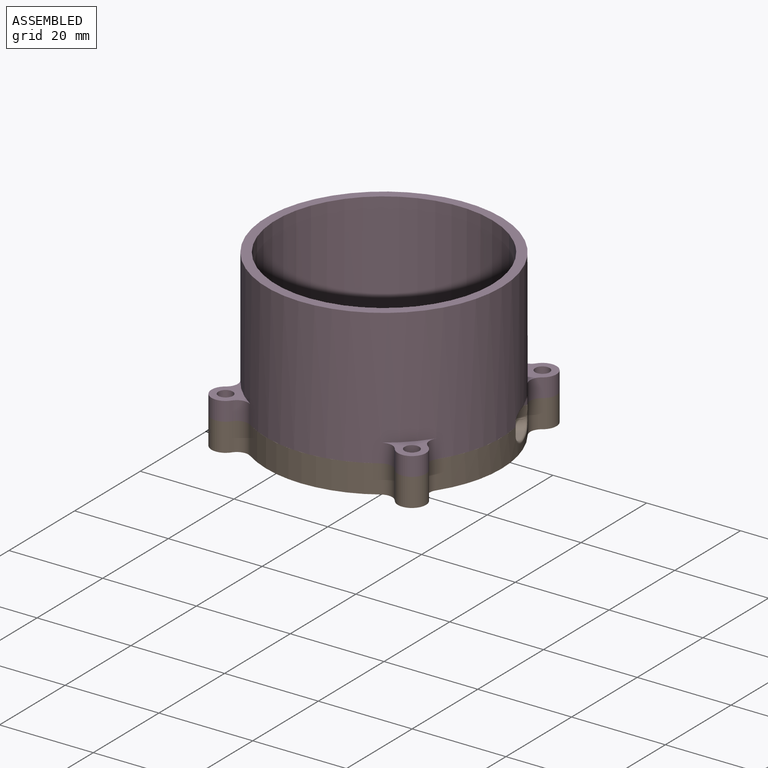
[diagram: assembled view]
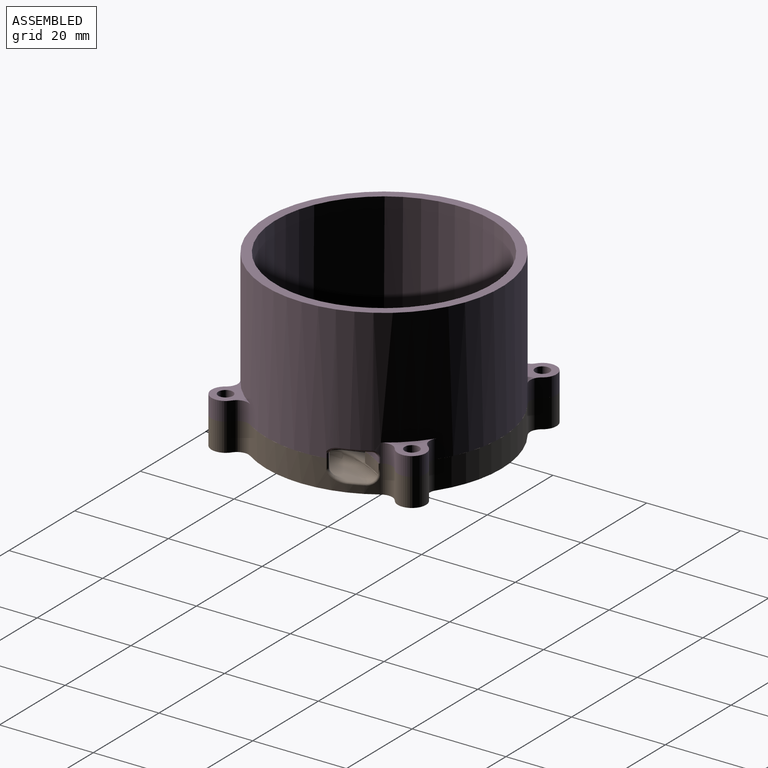
[diagram: assembled view, second angle]
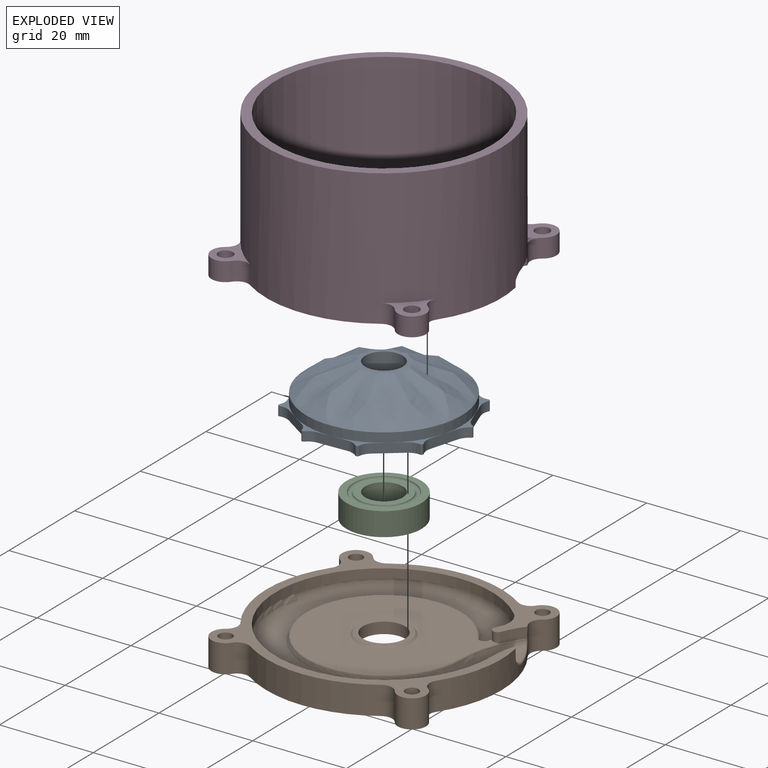
[diagram: exploded view]
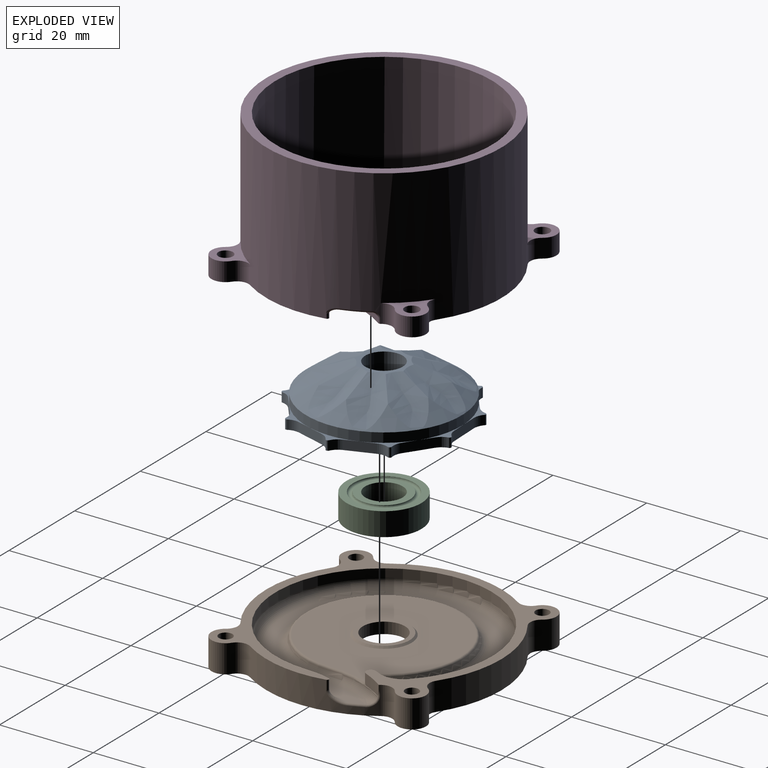
[diagram: exploded view, second angle]
ASSEMBLY  parts=4 mates=4
PART A: 78 faces, bbox 61.4x59.3x15.4 mm
  f0: cylinder r=4mm len=8mm, axis (0,0,-1), area 90.5mm2, adj f76,f77
  f1: bspline ~30.55x26.68mm, area 72mm2, adj f2,f10,f19,f72,f77
  f2: bspline ~39.54x32.55mm, area 72mm2, adj f1,f3,f18,f19,f77
  f3: bspline ~37.3x22.11mm, area 72mm2, adj f2,f4,f17,f18,f77
  f4: bspline ~34.81x33.17mm, area 72mm2, adj f3,f5,f16,f17,f77
  f5: bspline ~40.39x28.73mm, area 72mm2, adj f4,f6,f15,f16,f77
  f6: bspline ~30.55x26.68mm, area 72mm2, adj f5,f7,f14,f15,f77
  f7: bspline ~39.54x32.55mm, area 72mm2, adj f6,f8,f13,f14,f77
  f8: bspline ~37.3x22.11mm, area 72mm2, adj f7,f9,f12,f13,f77
  f9: bspline ~34.81x33.17mm, area 72mm2, adj f8,f10,f11,f12,f77
  f10: bspline ~40.39x28.73mm, area 72mm2, adj f1,f9,f11,f72,f77
  f11: cone r=16.61mm half-angle=52.1deg, axis (0,0,-1), area 26.4mm2, adj f9,f10,f71
  f12: cone r=16.61mm half-angle=52.1deg, axis (0,0,-1), area 26.4mm2, adj f8,f9,f71
  f13: cone r=16.61mm half-angle=52.1deg, axis (0,0,-1), area 26.4mm2, adj f7,f8,f71
  f14: cone r=16.61mm half-angle=52.1deg, axis (0,0,-1), area 26.4mm2, adj f6,f7,f71
  f15: cone r=16.61mm half-angle=52.1deg, axis (0,0,-1), area 26.4mm2, adj f5,f6,f71
  f16: cone r=16.61mm half-angle=52.1deg, axis (0,0,-1), area 26.4mm2, adj f4,f5,f71
  f17: cone r=16.61mm half-angle=52.1deg, axis (0,0,-1), area 26.4mm2, adj f3,f4,f71
  f18: cone r=16.61mm half-angle=52.1deg, axis (0,0,-1), area 26.4mm2, adj f2,f3,f71
  f19: cone r=16.61mm half-angle=52.1deg, axis (0,0,-1), area 26.4mm2, adj f1,f2,f71
  f20: plane 8.3x6.03mm, normal (0,0,1), area 4.7mm2, adj f54,f55,f56,f57,f69,f71
  f21: plane 9.76x4.18mm, normal (0,0,1), area 4.7mm2, adj f29,f30,f57,f58,f70,f71
  f22: plane 9.76x4.18mm, normal (0,0,1), area 4.7mm2, adj f30,f31,f32,f33,f61,f71
  f23: plane 8.3x6.03mm, normal (0,0,1), area 4.7mm2, adj f33,f34,f35,f36,f62,f71
  f24: plane 10.26x2.71mm, normal (0,0,1), area 4.7mm2, adj f36,f37,f38,f39,f63,f71
  f25: plane 8.3x6.03mm, normal (0,0,1), area 4.7mm2, adj f39,f40,f41,f42,f64,f71
  f26: plane 9.76x4.18mm, normal (0,0,1), area 4.7mm2, adj f42,f43,f44,f45,f65,f71
  f27: plane 9.76x4.18mm, normal (0,0,1), area 4.7mm2, adj f45,f46,f47,f48,f66,f71
  f28: plane 8.3x6.03mm, normal (0,0,1), area 4.7mm2, adj f48,f49,f50,f51,f67,f71
  f29: cylinder r=3.12mm len=2.19mm, axis (0,0,-1), area 4.8mm2, adj f21,f30,f60,f70
  f30: plane 6.25x2mm, normal (0,1,0), area 12.5mm2, adj f21,f22,f29,f31,f60
  f31: cylinder r=3.12mm len=2.19mm, axis (0,0,-1), area 4.8mm2, adj f22,f30,f60,f61
  f32: cylinder r=3.12mm len=2.01mm, axis (0,0,-1), area 4.8mm2, adj f22,f33,f60,f61
  f33: plane 5.06x3.67mm, normal (-0.59,0.81,0), area 12.5mm2, adj f22,f23,f32,f34,f60
  f34: cylinder r=3.12mm len=2.3mm, axis (0,0,-1), area 4.8mm2, adj f23,f33,f60,f62
  f35: cylinder r=3.12mm len=2.36mm, axis (0,0,-1), area 4.8mm2, adj f23,f36,f60,f62
  f36: plane 5.94x2mm, normal (-0.95,0.31,0), area 12.5mm2, adj f23,f24,f35,f37,f60
  f37: cylinder r=3.12mm len=2mm, axis (0,0,-1), area 4.8mm2, adj f24,f36,f60,f63
  f38: cylinder r=3.12mm len=2mm, axis (0,0,-1), area 4.8mm2, adj f24,f39,f60,f63
  f39: plane 5.94x2mm, normal (-0.95,-0.31,0), area 12.5mm2, adj f24,f25,f38,f40,f60
  f40: cylinder r=3.12mm len=2.36mm, axis (0,0,-1), area 4.8mm2, adj f25,f39,f60,f64
  f41: cylinder r=3.12mm len=2.3mm, axis (0,0,-1), area 4.8mm2, adj f25,f42,f60,f64
  f42: plane 5.06x3.67mm, normal (-0.59,-0.81,0), area 12.5mm2, adj f25,f26,f41,f43,f60
  f43: cylinder r=3.12mm len=2.01mm, axis (0,0,-1), area 4.8mm2, adj f26,f42,f60,f65
  f44: cylinder r=3.12mm len=2.19mm, axis (0,0,-1), area 4.8mm2, adj f26,f45,f60,f65
  f45: plane 6.25x2mm, normal (0,-1,0), area 12.5mm2, adj f26,f27,f44,f46,f60
  f46: cylinder r=3.12mm len=2.19mm, axis (0,0,-1), area 4.8mm2, adj f27,f45,f60,f66
  f47: cylinder r=3.12mm len=2.01mm, axis (0,0,-1), area 4.8mm2, adj f27,f48,f60,f66
  f48: plane 5.06x3.67mm, normal (0.59,-0.81,0), area 12.5mm2, adj f27,f28,f47,f49,f60
  f49: cylinder r=3.12mm len=2.3mm, axis (0,0,-1), area 4.8mm2, adj f28,f48,f60,f67
  f50: cylinder r=3.12mm len=2.36mm, axis (0,0,-1), area 4.8mm2, adj f28,f51,f60,f67
  f51: plane 5.94x2mm, normal (0.95,-0.31,0), area 12.5mm2, adj f28,f50,f52,f59,f60
  f52: cylinder r=3.12mm len=2mm, axis (0,0,-1), area 4.8mm2, adj f51,f59,f60,f68
  f53: cylinder r=3.12mm len=2mm, axis (0,0,-1), area 4.8mm2, adj f54,f59,f60,f68
  f54: plane 5.94x2mm, normal (0.95,0.31,0), area 12.5mm2, adj f20,f53,f55,f59,f60
  f55: cylinder r=3.12mm len=2.36mm, axis (0,0,-1), area 4.8mm2, adj f20,f54,f60,f69
  f56: cylinder r=3.12mm len=2.3mm, axis (0,0,-1), area 4.8mm2, adj f20,f57,f60,f69
  f57: plane 5.06x3.67mm, normal (0.59,0.81,0), area 12.5mm2, adj f20,f21,f56,f58,f60
  f58: cylinder r=3.12mm len=2.01mm, axis (0,0,-1), area 4.8mm2, adj f21,f57,f60,f70
  f59: plane 10.26x2.71mm, normal (0,0,1), area 4.7mm2, adj f51,f52,f53,f54,f68,f71
  f60: plane 37x35.23mm, normal (0,0,-1), area 685.9mm2, adj f29,f30,f31,f32,f33,f34,f35,f36
  f61: cylinder r=0.4mm len=2mm, axis (0,0,-1), area 1.7mm2, adj f22,f31,f32,f60
  f62: cylinder r=0.4mm len=2mm, axis (0,0,-1), area 1.7mm2, adj f23,f34,f35,f60
  f63: cylinder r=0.4mm len=2mm, axis (0,0,-1), area 1.7mm2, adj f24,f37,f38,f60
  f64: cylinder r=0.4mm len=2mm, axis (0,0,-1), area 1.7mm2, adj f25,f40,f41,f60
  f65: cylinder r=0.4mm len=2mm, axis (0,0,-1), area 1.7mm2, adj f26,f43,f44,f60
  f66: cylinder r=0.4mm len=2mm, axis (0,0,-1), area 1.7mm2, adj f27,f46,f47,f60
  f67: cylinder r=0.4mm len=2mm, axis (0,0,-1), area 1.7mm2, adj f28,f49,f50,f60
  f68: cylinder r=0.4mm len=2mm, axis (0,0,-1), area 1.7mm2, adj f52,f53,f59,f60
  f69: cylinder r=0.4mm len=2mm, axis (0,0,-1), area 1.7mm2, adj f20,f55,f56,f60
  f70: cylinder r=0.4mm len=2mm, axis (0,0,-1), area 1.7mm2, adj f21,f29,f58,f60
  f71: cylinder r=16.61mm len=33.21mm, axis (0,0,-1), area 208.7mm2, adj f11,f12,f13,f14,f15,f16,f17,f18
  f72: cone r=16.61mm half-angle=52.1deg, axis (0,0,-1), area 26.4mm2, adj f1,f10,f71
  f73: cylinder r=8mm len=16mm, axis (0,0,-1), area 246.3mm2, adj f74,f75
  f74: plane 16x16mm, normal (0,0,-1), area 122.5mm2, adj f73,f76
  f75: torus R=8.5mm, axis (0,0,1), area 40.4mm2, adj f60,f73
  f76: torus R=5mm, axis (0,0,-1), area 43.1mm2, adj f0,f74
  f77: plane 11.16x10.63mm, normal (0,0,1), area 28.1mm2, adj f0,f1,f2,f3,f4,f5,f6,f7
PART B: 52 faces, bbox 50.2x50.2x6 mm
  f0: cylinder r=4.5mm len=9mm, axis (0,0,1), area 67.9mm2, adj f47,f49
  f1: cylinder r=25.1mm len=27.86mm, axis (0,0,-1), area 177.2mm2, adj f7,f13,f16,f27
  f2: cylinder r=25.1mm len=27.86mm, axis (0,0,-1), area 177.2mm2, adj f7,f13,f20,f23
  f3: cylinder r=25.1mm len=27.86mm, axis (0,0,-1), area 138.4mm2, adj f7,f10,f13,f19,f28,f43,f44,f45
  f4: cylinder r=25.1mm len=27.86mm, axis (0,0,-1), area 177.2mm2, adj f7,f13,f15,f24
  f5: plane 34x32.4mm, normal (0,0,1), area 724.3mm2, adj f14,f38,f39,f40,f41,f48
  f6: cylinder r=23.1mm len=46.2mm, axis (0,0,1), area 253.3mm2, adj f9,f12,f13,f36
  f7: plane 50.2x50.2mm, normal (0,0,-1), area 1834.1mm2, adj f1,f2,f3,f4,f15,f16,f17,f18
  f8: plane 44.28x42.2mm, normal (0,0,1), area 298.5mm2, adj f31,f32,f34,f35,f36,f37,f45
  f9: cylinder r=16.65mm len=4.93mm, axis (0,0,-1), area 10mm2, adj f6,f13,f37,f43
  f10: cylinder r=23.1mm len=4.51mm, axis (0,0,-1), area 11.7mm2, adj f3,f13,f14,f38,f46
  f11: cylinder r=25.1mm len=2mm, axis (0,0,-1), area 2.1mm2, adj f12,f13,f14,f34
  f12: cylinder r=5mm len=5.75mm, axis (0,0,-1), area 12.5mm2, adj f6,f11,f13,f35
  f13: plane 50.2x50.2mm, normal (0,0,1), area 404.2mm2, adj f1,f2,f3,f4,f6,f9,f10,f11
  f14: cylinder r=1mm len=2.28mm, axis (0,0,-1), area 6.4mm2, adj f5,f10,f11,f13,f38,f42
  f15: cylinder r=2.5mm len=6mm, axis (0,0,-1), area 23.4mm2, adj f4,f7,f13,f17
  f16: cylinder r=2.5mm len=6mm, axis (0,0,-1), area 23.4mm2, adj f1,f7,f13,f17
  f17: cylinder r=3mm len=6mm, axis (0,0,-1), area 63.4mm2, adj f7,f13,f15,f16
  f18: cylinder r=1.44mm len=6mm, axis (0,0,-1), area 54.2mm2, adj f7,f13
  f19: cylinder r=2.5mm len=6mm, axis (0,0,-1), area 23.4mm2, adj f3,f7,f13,f21
  f20: cylinder r=2.5mm len=6mm, axis (0,0,-1), area 23.4mm2, adj f2,f7,f13,f21
  f21: cylinder r=3mm len=6mm, axis (0,0,-1), area 63.4mm2, adj f7,f13,f19,f20
  f22: cylinder r=1.44mm len=6mm, axis (0,0,-1), area 54.2mm2, adj f7,f13
  f23: cylinder r=2.5mm len=6mm, axis (0,0,-1), area 23.4mm2, adj f2,f7,f13,f25
  f24: cylinder r=2.5mm len=6mm, axis (0,0,-1), area 23.4mm2, adj f4,f7,f13,f25
  f25: cylinder r=3mm len=6mm, axis (0,0,-1), area 63.4mm2, adj f7,f13,f23,f24
  f26: cylinder r=1.44mm len=6mm, axis (0,0,-1), area 54.2mm2, adj f7,f13
  f27: cylinder r=2.5mm len=6mm, axis (0,0,-1), area 23.4mm2, adj f1,f7,f13,f29
  f28: cylinder r=2.5mm len=6mm, axis (0,0,-1), area 23.4mm2, adj f3,f7,f13,f29
  f29: cylinder r=3mm len=6mm, axis (0,0,-1), area 63.4mm2, adj f7,f13,f27,f28
  f30: cylinder r=1.44mm len=6mm, axis (0,0,-1), area 54.2mm2, adj f7,f13
  f31: torus R=21.1mm, axis (0,0,1), area 36.1mm2, adj f8,f32,f38,f46
  f32: torus R=18.65mm, axis (0,0,1), area 272.8mm2, adj f8,f31,f33,f39
  f33: bspline ~4.26x1.79mm, area 2.8mm2, adj f32,f34,f40
  f34: torus R=27.1mm, axis (0,0,1), area 4.9mm2, adj f8,f11,f33,f35,f41,f42
  f35: torus R=3mm, axis (0,0,1), area 16.7mm2, adj f8,f12,f34,f36
  f36: torus R=21.1mm, axis (0,0,1), area 385.4mm2, adj f6,f8,f35,f37
  f37: torus R=18.65mm, axis (0,0,1), area 21.3mm2, adj f8,f9,f36,f44
  f38: torus R=23.55mm, axis (0,0,1), area 6.8mm2, adj f5,f10,f14,f31,f39,f46
  f39: torus R=16.2mm, axis (0,0,-1), area 64.9mm2, adj f5,f32,f38,f40
  f40: bspline ~2.92x1.45mm, area 1.8mm2, adj f5,f33,f39,f41
  f41: torus R=24.65mm, axis (0,0,-1), area 0.3mm2, adj f5,f34,f40,f42
  f42: bspline ~0.96x0.46mm, area 0.2mm2, adj f14,f34,f41
  f43: cylinder r=0.4mm len=2mm, axis (0,0,1), area 2.1mm2, adj f3,f9,f13,f44
  f44: bspline ~4.57x2.68mm, area 3.8mm2, adj f3,f37,f43,f45
  f45: torus R=24.7mm, axis (0,0,1), area 1.9mm2, adj f3,f8,f44,f46
  f46: bspline ~3.68x3.05mm, area 2.2mm2, adj f3,f10,f31,f38,f45
  f47: plane 11x11mm, normal (0,0,1), area 31.4mm2, adj f0,f48
  f48: cone r=5.5mm half-angle=45deg, axis (0,0,-1), area 20.3mm2, adj f5,f47
  f49: plane 16x16mm, normal (0,0,-1), area 137.4mm2, adj f0,f50
  f50: cylinder r=8mm len=16mm, axis (0,0,-1), area 50.3mm2, adj f49,f51
  f51: torus R=9mm, axis (0,0,1), area 82.5mm2, adj f7,f50
PART C: 8 faces, bbox 16x16x5.7 mm
  f0: plane 16x16mm, normal (0,0,1), area 68.3mm2, adj f2,f4
  f1: plane 16x16mm, normal (0,0,-1), area 68.3mm2, adj f2,f3
  f2: cylinder r=8mm len=16mm, axis (0,0,-1), area 251.3mm2, adj f0,f1
  f3: torus R=6mm, axis (0,0,-1), area 59.2mm2, adj f1,f7
  f4: torus R=6mm, axis (0,0,-1), area 59.2mm2, adj f0,f5
  f5: plane 11x11mm, normal (0,0,1), area 44.8mm2, adj f4,f6
  f6: cylinder r=4mm len=8mm, axis (0,0,-1), area 125.7mm2, adj f5,f7
  f7: plane 11x11mm, normal (0,0,-1), area 44.8mm2, adj f3,f6
PART D: 43 faces, bbox 50.6x50.6x29.4 mm
  f0: plane 8.94x8.94mm, normal (0,0,1), area 26.2mm2, adj f7,f19,f20,f21,f22
  f1: plane 8.94x8.94mm, normal (0,0,1), area 26.2mm2, adj f7,f15,f16,f17,f18
  f2: plane 8.94x8.94mm, normal (0,0,1), area 26.2mm2, adj f7,f23,f24,f25,f26
  f3: cylinder r=23.1mm len=46.2mm, axis (0,0,-1), area 3664.1mm2, adj f8,f9,f11,f13,f34,f40,f41
  f4: cylinder r=25.1mm len=8.14mm, axis (0,0,-1), area 30.7mm2, adj f5,f9,f11,f42
  f5: cylinder r=16.61mm len=4.5mm, axis (0,0,-1), area 11.2mm2, adj f4,f9,f10,f42
  f6: cylinder r=23.1mm len=9.54mm, axis (0,0,-1), area 10.4mm2, adj f9,f10,f31,f39
  f7: cylinder r=25.1mm len=50.2mm, axis (0,0,-1), area 4393.3mm2, adj f0,f1,f2,f9,f14,f15,f17,f21
  f8: cylinder r=16.61mm len=4.92mm, axis (0,0,-1), area 5mm2, adj f3,f9,f33,f35
  f9: plane 50.2x50.2mm, normal (0,0,-1), area 408.8mm2, adj f3,f4,f5,f6,f7,f8,f10,f11
  f10: cylinder r=0.4mm len=4.63mm, axis (0,0,-1), area 2.3mm2, adj f5,f6,f9,f13,f32,f42
  f11: cylinder r=5mm len=11mm, axis (0,0,-1), area 59.8mm2, adj f3,f4,f9,f42
  f12: plane 12.05x6.13mm, normal (0,0,-1), area 40mm2, adj f13,f31,f32,f33,f37
  f13: plane 10.44x7.2mm, normal (-0.5,-0.87,0), area 45.3mm2, adj f3,f10,f12,f32,f33,f34,f42
  f14: plane 8.94x8.94mm, normal (0,0,1), area 26.2mm2, adj f7,f27,f28,f29,f30
  f15: cylinder r=2.5mm len=4mm, axis (0,0,1), area 15.6mm2, adj f1,f7,f9,f16
  f16: cylinder r=3mm len=5.48mm, axis (0,0,1), area 42.2mm2, adj f1,f9,f15,f17
  f17: cylinder r=2.5mm len=4mm, axis (0,0,1), area 15.6mm2, adj f1,f7,f9,f16
  f18: cylinder r=1.55mm len=4mm, axis (0,0,1), area 39mm2, adj f1,f9
  f19: cylinder r=3mm len=5.48mm, axis (0,0,1), area 42.2mm2, adj f0,f9,f21,f22
  f20: cylinder r=1.55mm len=4mm, axis (0,0,1), area 39mm2, adj f0,f9
  f21: cylinder r=2.5mm len=4mm, axis (0,0,1), area 15.6mm2, adj f0,f7,f9,f19
  f22: cylinder r=2.5mm len=4mm, axis (0,0,1), area 15.6mm2, adj f0,f7,f9,f19
  f23: cylinder r=3mm len=5.48mm, axis (0,0,1), area 42.2mm2, adj f2,f9,f25,f26
  f24: cylinder r=1.55mm len=4mm, axis (0,0,1), area 39mm2, adj f2,f9
  f25: cylinder r=2.5mm len=4mm, axis (0,0,1), area 15.6mm2, adj f2,f7,f9,f23
  f26: cylinder r=2.5mm len=4mm, axis (0,0,1), area 15.6mm2, adj f2,f7,f9,f23
  f27: cylinder r=3mm len=5.48mm, axis (0,0,1), area 42.2mm2, adj f9,f14,f29,f30
  f28: cylinder r=1.55mm len=4mm, axis (0,0,1), area 39mm2, adj f9,f14
  f29: cylinder r=2.5mm len=4mm, axis (0,0,1), area 15.6mm2, adj f7,f9,f14,f27
  f30: cylinder r=2.5mm len=4mm, axis (0,0,1), area 15.6mm2, adj f7,f9,f14,f27
  f31: torus R=22.1mm, axis (0,0,1), area 15.6mm2, adj f6,f12,f32,f38
  f32: torus R=1.4mm, axis (0,0,1), area 1.4mm2, adj f10,f12,f13,f31
  f33: torus R=17.61mm, axis (0,0,1), area 9.5mm2, adj f8,f12,f13,f34,f36
  f34: torus R=22.1mm, axis (0,0,1), area 0.1mm2, adj f3,f13,f33
  f35: cylinder r=0.4mm len=1mm, axis (0,0,-1), area 1.1mm2, adj f7,f8,f9,f36
  f36: bspline ~3.04x1.72mm, area 2.2mm2, adj f7,f33,f35,f37
  f37: torus R=24.7mm, axis (0,0,1), area 3.6mm2, adj f7,f12,f36,f38
  f38: bspline ~1.8x1.7mm, area 1mm2, adj f7,f31,f37,f39
  f39: cylinder r=0.4mm len=1mm, axis (0,0,1), area 0.5mm2, adj f6,f7,f9,f38
  f40: extruded ~18x16.88mm, area 338.6mm2, adj f3,f41,f42
  f41: plane 50.2x50.2mm, normal (0,0,1), area 302.9mm2, adj f3,f7,f40
  f42: bspline ~17.36x12.12mm, area 87.5mm2, adj f4,f5,f10,f11,f13,f40
PLACE A rot(axis=(0,0,1),146.2deg) t=(0,0,1.8)mm
PLACE B t=(0,0,-2.2)mm fixed
PLACE C t=(0,0,2.2)mm
PLACE D t=(0,0,3.8)mm
MATE cylindrical A.f73 <-> B.f0  axis (0,0,-1) through (0,0,4.75)mm
MATE planar A.f73 <-> C.f2  axis (0,0,-1) through (0,0,7.2)mm
MATE planar D.f9 <-> B.f13  axis (0,0,-1) through (-0.18,0.07,3.8)mm
MATE cylindrical C.f2 <-> B.f0  axis (0,0,-1) through (0,0,4.7)mm
